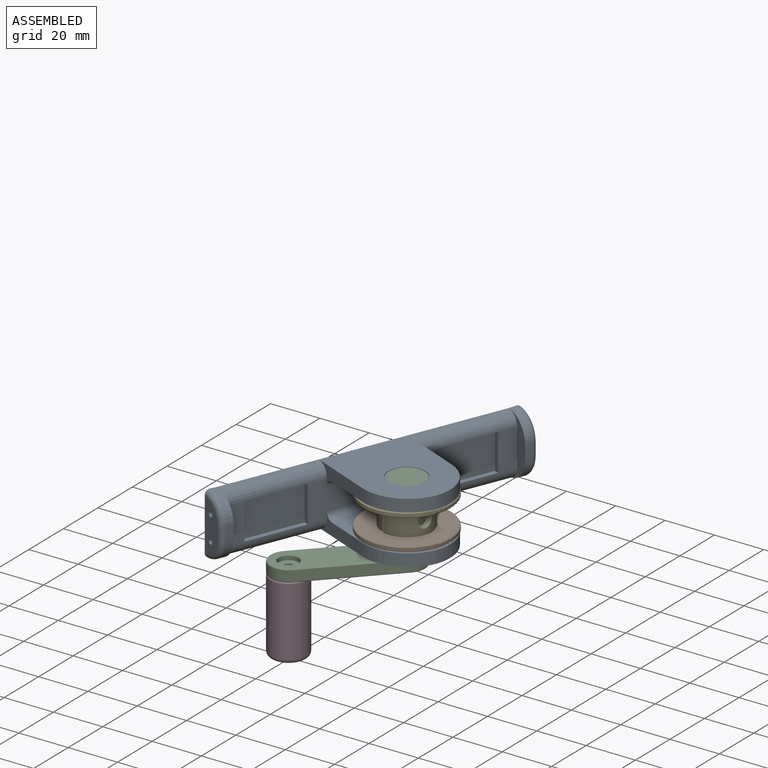
[diagram: assembled view]
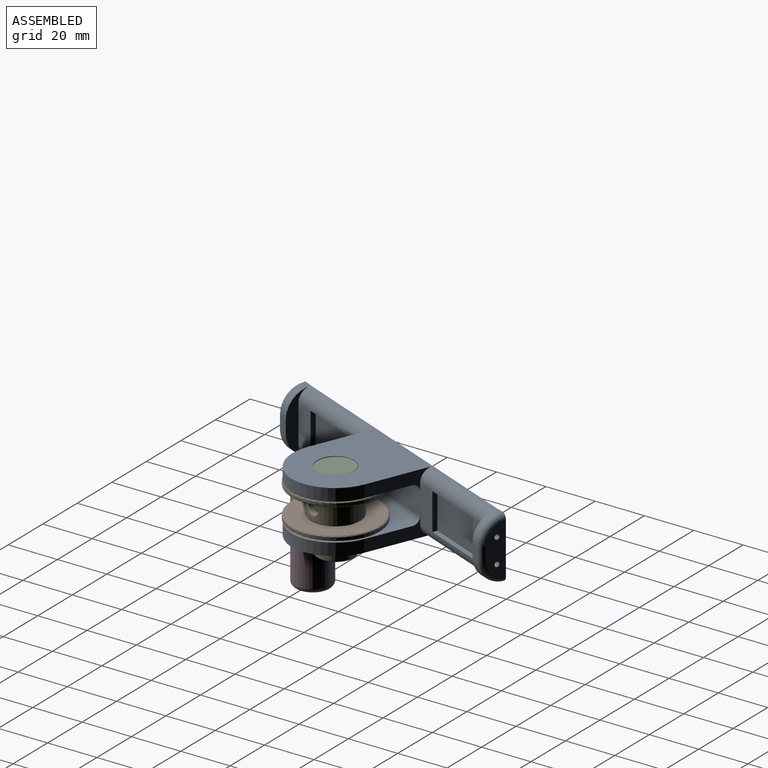
[diagram: assembled view, second angle]
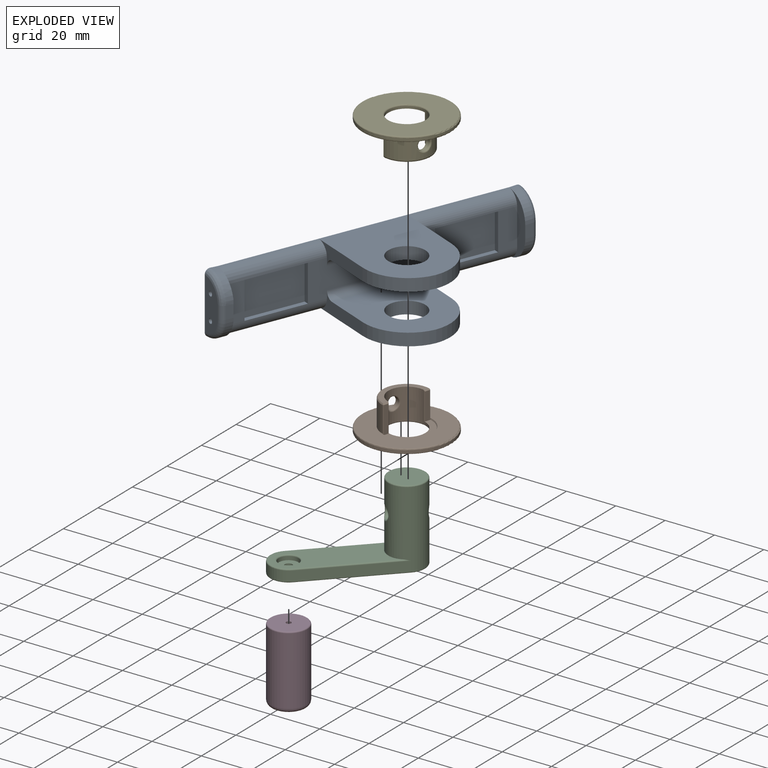
[diagram: exploded view]
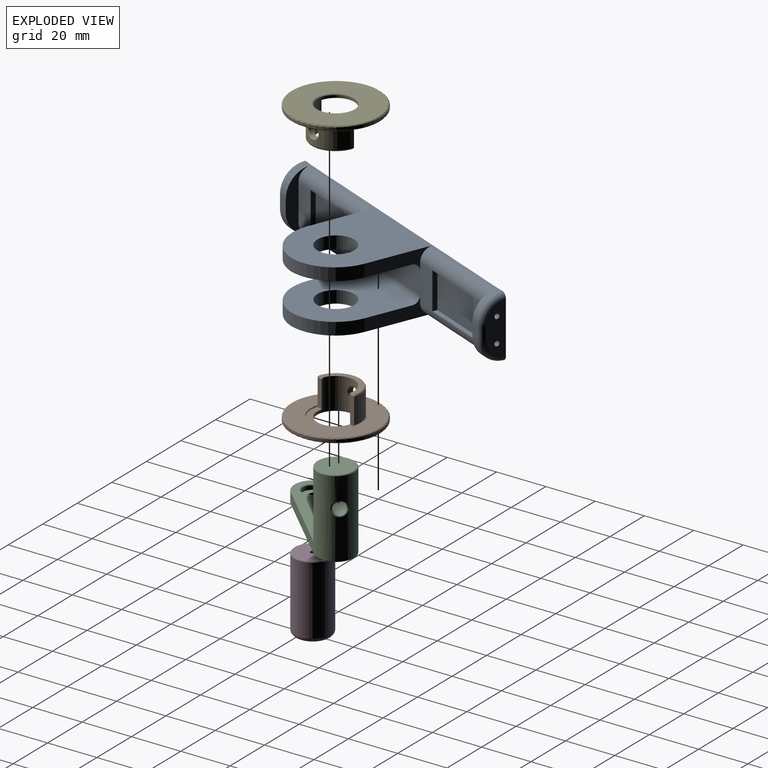
[diagram: exploded view, second angle]
ASSEMBLY  parts=5 mates=4
PART A: 58 faces, bbox 26.1x125x45.4 mm
  f0: plane 21.17x8mm, normal (0,1,0), area 135.6mm2, adj f15,f45,f46,f47,f52,f54
  f1: plane 21.17x8mm, normal (0,-1,0), area 135.6mm2, adj f15,f42,f43,f44,f48,f50
  f2: plane 15x7.5mm, normal (0,0,1), area 112.5mm2, adj f6,f28,f29,f34
  f3: plane 15x7.5mm, normal (0,0,1), area 112.5mm2, adj f9,f30,f31,f36
  f4: plane 15x2mm, normal (0,-1,0), area 30mm2, adj f5,f13,f14,f56
  f5: plane 25x2mm, normal (-1,0,0), area 50mm2, adj f4,f6,f28,f56
  f6: plane 15x2mm, normal (0,1,0), area 30mm2, adj f2,f5,f13,f56
  f7: plane 44.99x35mm, normal (-1,0,0), area 1259.2mm2, adj f15,f16,f18,f23,f26,f27
  f8: plane 44.99x35mm, normal (1,0,0), area 1259.2mm2, adj f15,f19,f21,f22,f24,f25
  f9: plane 15x2mm, normal (0,-1,0), area 30mm2, adj f3,f10,f12,f57
  f10: plane 25x2mm, normal (-1,0,0), area 50mm2, adj f9,f11,f31,f57
  f11: plane 15x2mm, normal (0,1,0), area 30mm2, adj f10,f12,f14,f57
  f12: plane 25x2mm, normal (1,0,0), area 50mm2, adj f9,f11,f30,f57
  f13: plane 25x2mm, normal (1,0,0), area 50mm2, adj f4,f6,f29,f56
  f14: plane 50x15mm, normal (0,0,1), area 540mm2, adj f4,f11,f16,f18,f19,f21,f28,f29
  f15: plane 125x25.17mm, normal (0,0,-1), area 3122.8mm2, adj f0,f1,f7,f8,f28,f29,f30,f31
  f16: plane 27x8mm, normal (0,1,0), area 117.3mm2, adj f7,f14,f17,f26,f30,f32
  f17: plane 36.99x35mm, normal (1,0,0), area 979.2mm2, adj f16,f18,f23,f26,f27,f32
  f18: plane 27x8mm, normal (0,-1,0), area 117.3mm2, adj f7,f14,f17,f27,f29,f32
  f19: plane 27x8mm, normal (0,-1,0), area 117.3mm2, adj f8,f14,f20,f25,f28,f33
  f20: plane 36.99x35mm, normal (-1,0,0), area 979.2mm2, adj f19,f21,f22,f24,f25,f33
  f21: plane 27x8mm, normal (0,1,0), area 117.3mm2, adj f8,f14,f20,f24,f31,f33
  f22: cylinder r=7.5mm len=15mm, axis (-1,0,0), area 235.6mm2, adj f8,f20
  f23: cylinder r=7.5mm len=15mm, axis (-1,0,0), area 235.6mm2, adj f7,f17
  f24: cylinder r=18mm len=17.99mm, axis (1,0,0), area 138.9mm2, adj f8,f20,f21,f25
  f25: cylinder r=18mm len=17.99mm, axis (-1,0,0), area 138.9mm2, adj f8,f19,f20,f24
  f26: cylinder r=18mm len=17.99mm, axis (1,0,0), area 138.9mm2, adj f7,f16,f17,f27
  f27: cylinder r=18mm len=17.99mm, axis (-1,0,0), area 138.9mm2, adj f7,f17,f18,f26
  f28: cylinder r=5mm len=40mm, axis (0,-1,0), area 314.2mm2, adj f2,f5,f14,f15,f19,f34
  f29: cylinder r=5mm len=40mm, axis (0,1,0), area 314.2mm2, adj f2,f13,f14,f15,f18,f34
  f30: cylinder r=5mm len=40mm, axis (0,1,0), area 314.2mm2, adj f3,f12,f14,f15,f16,f36
  f31: cylinder r=5mm len=40mm, axis (0,-1,0), area 314.2mm2, adj f3,f10,f14,f15,f21,f36
  f32: cylinder r=3mm len=35mm, axis (0,1,0), area 164.9mm2, adj f14,f16,f17,f18
  f33: cylinder r=3mm len=35mm, axis (0,-1,0), area 164.9mm2, adj f14,f19,f20,f21
  f34: plane 25x10mm, normal (0,1,0), area 92.8mm2, adj f2,f28,f29,f35,f40,f41
  f35: plane 5.16x3mm, normal (0,0,1), area 15.2mm2, adj f34,f40,f41,f43
  f36: plane 25x10mm, normal (0,-1,0), area 92.8mm2, adj f3,f30,f31,f37,f38,f39
  f37: plane 5.16x3mm, normal (0,0,1), area 15.2mm2, adj f36,f38,f39,f46
  f38: cylinder r=10mm len=10mm, axis (0,1,0), area 47.1mm2, adj f15,f36,f37,f47
  f39: cylinder r=10mm len=10.18mm, axis (-0.06,-1,0), area 46.1mm2, adj f15,f36,f37,f45
  f40: cylinder r=10mm len=10.18mm, axis (0.06,-1,0), area 46.1mm2, adj f15,f34,f35,f44
  f41: cylinder r=10mm len=10mm, axis (0,1,0), area 47.1mm2, adj f15,f34,f35,f42
  f42: torus R=8mm, axis (0,1,0), area 45.8mm2, adj f1,f15,f41,f43
  f43: cylinder r=2mm len=5.16mm, axis (-1,0,0), area 16.2mm2, adj f1,f35,f42,f44
  f44: bspline ~11.87x10mm, area 46.9mm2, adj f1,f15,f40,f43
  f45: bspline ~11.87x10.45mm, area 46.9mm2, adj f0,f15,f39,f46
  f46: cylinder r=2mm len=5.16mm, axis (1,0,0), area 16.2mm2, adj f0,f37,f45,f47
  f47: torus R=8mm, axis (0,1,0), area 45.8mm2, adj f0,f15,f38,f46
  f48: cylinder r=1mm len=5mm, axis (0,1,0), area 31.4mm2, adj f1,f49
  f49: plane 2x2mm, normal (0,-1,0), area 3.1mm2, adj f48
  f50: cylinder r=1mm len=5mm, axis (0,1,0), area 31.4mm2, adj f1,f51
  f51: plane 2x2mm, normal (0,-1,0), area 3.1mm2, adj f50
  f52: cylinder r=1mm len=5mm, axis (0,-1,0), area 31.4mm2, adj f0,f53
  f53: plane 2x2mm, normal (0,1,0), area 3.1mm2, adj f52
  f54: cylinder r=1mm len=5mm, axis (0,-1,0), area 31.4mm2, adj f0,f55
  f55: plane 2x2mm, normal (0,1,0), area 3.1mm2, adj f54
  f56: plane 25x15mm, normal (0,0,1), area 375mm2, adj f4,f5,f6,f13
  f57: plane 25x15mm, normal (0,0,1), area 375mm2, adj f9,f10,f11,f12
PART B: 23 faces, bbox 38.9x13x38.9 mm
  f0: cylinder r=7.5mm len=15mm, axis (0,1,0), area 286.5mm2, adj f5,f8,f11,f12,f13,f16,f19,f20
  f1: cylinder r=10mm len=20mm, axis (0,1,0), area 295.4mm2, adj f3,f10,f17,f18,f21
  f2: cylinder r=17.98mm len=35.95mm, axis (0,1,0), area 112.9mm2, adj f14,f15
  f3: plane 34.95x34.95mm, normal (0,-1,0), area 638.9mm2, adj f1,f6,f7,f15,f18,f21,f22
  f4: plane 34.95x34.95mm, normal (0,1,0), area 758.3mm2, adj f13,f14
  f5: plane 20x10.2mm, normal (0,-1,0), area 68.8mm2, adj f0,f6,f7,f19,f20,f22
  f6: plane 11x2.5mm, normal (-1,0,0), area 23.3mm2, adj f3,f5,f12,f20,f21,f22
  f7: plane 11x2.5mm, normal (-1,0,0), area 23.3mm2, adj f3,f5,f11,f18,f19,f22
  f8: plane 19.37x9.2mm, normal (0,-1,0), area 57.2mm2, adj f0,f10,f11,f12
  f9: cylinder r=2.5mm len=5mm, axis (-1,0,0), area 24.3mm2, adj f16,f17
  f10: cone r=9.7mm half-angle=31deg, axis (0,1,0), area 17.7mm2, adj f1,f8,f11,f12,f18,f21
  f11: plane 2.44x0.5mm, normal (-0.71,-0.71,0), area 1.6mm2, adj f0,f7,f8,f10,f18,f19
  f12: plane 2.44x0.5mm, normal (-0.71,-0.71,0), area 1.6mm2, adj f0,f6,f8,f10,f20,f21
  f13: torus R=8mm, axis (0,-1,0), area 37.9mm2, adj f0,f4
  f14: torus R=17.48mm, axis (0,-1,0), area 87.8mm2, adj f2,f4
  f15: torus R=17.48mm, axis (0,-1,0), area 87.8mm2, adj f2,f3
  f16: bspline ~6.01x5.63mm, area 11.6mm2, adj f0,f9
  f17: bspline ~6.32x6.01mm, area 14.8mm2, adj f1,f9
  f18: plane 10.63x0.2mm, normal (-0.7,0,-0.71), area 3mm2, adj f1,f3,f7,f10,f11
  f19: plane 11.2x0.2mm, normal (-0.72,0,0.7), area 3.1mm2, adj f0,f5,f7,f11
  f20: plane 11.2x0.2mm, normal (-0.72,0,-0.7), area 3.1mm2, adj f0,f5,f6,f12
  f21: plane 10.63x0.2mm, normal (-0.7,0,0.71), area 3mm2, adj f1,f3,f6,f10,f12
  f22: cone r=10mm half-angle=21.8deg, axis (0,-1,0), area 17.1mm2, adj f3,f5,f6,f7
PART C: 22 faces, bbox 56.2x16.2x32 mm
  f0: plane 40x4mm, normal (0,1,0), area 160mm2, adj f5,f9,f13,f15
  f1: plane 40x4mm, normal (0,-1,0), area 160mm2, adj f5,f9,f10,f14
  f2: cylinder r=4mm len=8mm, axis (0,0,-1), area 37.7mm2, adj f8,f18
  f3: plane 44.31x14mm, normal (0,0,1), area 486.8mm2, adj f5,f14,f15,f16,f18
  f4: plane 54x14mm, normal (0,0,-1), area 706.9mm2, adj f7,f10,f11,f12,f13
  f5: cylinder r=7.5mm len=31mm, axis (0,0,-1), area 1294.1mm2, adj f0,f1,f3,f12,f14,f15,f17,f20
  f6: plane 14x14mm, normal (0,0,1), area 153.9mm2, adj f17
  f7: cylinder r=1.5mm len=3mm, axis (0,0,-1), area 28.3mm2, adj f4,f8
  f8: plane 8x8mm, normal (0,0,1), area 43.2mm2, adj f2,f7
  f9: cylinder r=7.5mm len=15mm, axis (0,0,-1), area 94.2mm2, adj f0,f1,f11,f16
  f10: cylinder r=0.5mm len=40mm, axis (1,0,0), area 31.4mm2, adj f1,f4,f11,f12
  f11: torus R=7mm, axis (0,0,1), area 18.1mm2, adj f4,f9,f10,f13
  f12: torus R=7mm, axis (0,0,1), area 18.1mm2, adj f4,f5,f10,f13
  f13: cylinder r=0.5mm len=40mm, axis (-1,0,0), area 31.4mm2, adj f0,f4,f11,f12
  f14: cylinder r=0.5mm len=40mm, axis (-1,0,0), area 30.4mm2, adj f1,f3,f5,f16
  f15: cylinder r=0.5mm len=40mm, axis (1,0,0), area 30.4mm2, adj f0,f3,f5,f16
  f16: torus R=7mm, axis (0,0,1), area 18.1mm2, adj f3,f9,f14,f15
  f17: torus R=7mm, axis (0,0,1), area 36.1mm2, adj f5,f6
  f18: torus R=4.5mm, axis (0,0,1), area 20.6mm2, adj f2,f3
  f19: cylinder r=2.5mm len=14mm, axis (1,0,0), area 209.4mm2, adj f20,f21
  f20: bspline ~6.44x6mm, area 15.5mm2, adj f5,f19
  f21: bspline ~6.44x6mm, area 15.5mm2, adj f5,f19
PART D: 7 faces, bbox 16.2x16.2x30 mm
  f0: cylinder r=1mm len=10mm, axis (0,0,-1), area 62.8mm2, adj f2,f4
  f1: cylinder r=7.5mm len=27.5mm, axis (0,0,-1), area 1295.9mm2, adj f5,f6
  f2: plane 14x14mm, normal (0,0,1), area 150.8mm2, adj f0,f6
  f3: plane 11x11mm, normal (0,0,-1), area 95mm2, adj f5
  f4: plane 2x2mm, normal (0,0,1), area 3.1mm2, adj f0
  f5: torus R=5.5mm, axis (0,0,1), area 133.7mm2, adj f1,f3
  f6: torus R=7mm, axis (0,0,1), area 36.1mm2, adj f1,f2
PART E: same geometry as B
PLACE A rot(axis=(0.7,-0.14,0.7),164.2deg) t=(-11.99,98.17,51.65)mm fixed
PLACE B rot(axis=(-0.1,-0.7,0.7),168deg) t=(-8.95,34.64,44.65)mm
PLACE C rot(axis=(0,0,-1),134deg) t=(-41.92,0.44,32.15)mm
PLACE D rot(axis=(0,0,-1),34.1deg) t=(-36.71,5.84,2.15)mm
PLACE E rot(axis=(0.98,-0.15,-0.15),91.2deg) t=(-8.95,34.64,59.15)mm
MATE revolute C.f5 <-> A.f22  axis (0,0,1) through (-8.95,34.64,64.15)mm
MATE revolute C.f5 <-> E.f0  axis (0,0,1) through (-8.95,34.64,64.15)mm
MATE slider B.f0 <-> E.f0  axis (0,0,1) through (-8.95,34.64,46.15)mm
MATE revolute C.f2 <-> D.f0  axis (0,0,-1) through (-36.71,5.84,32.15)mm
